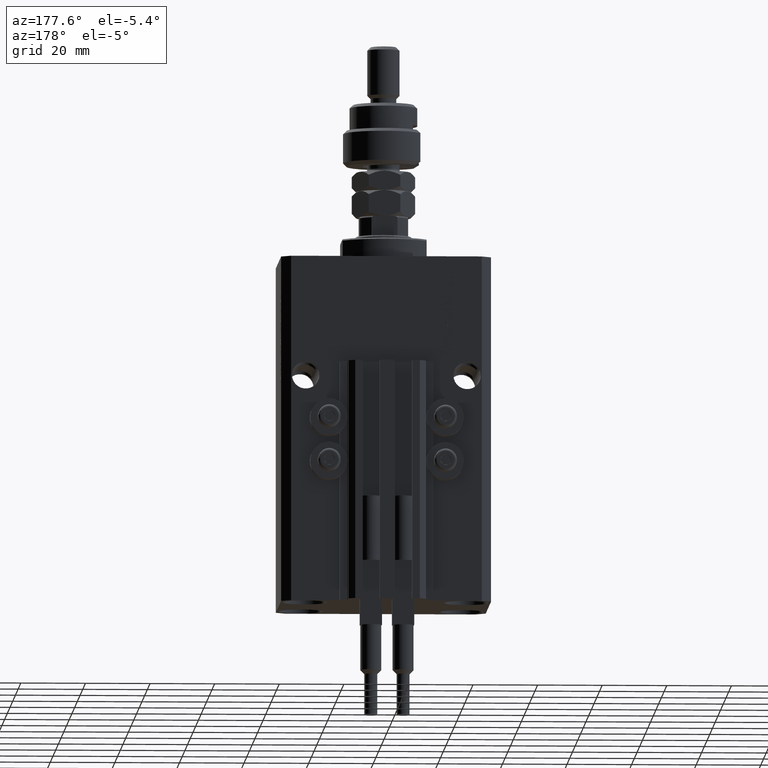
[diagram: clean part render]
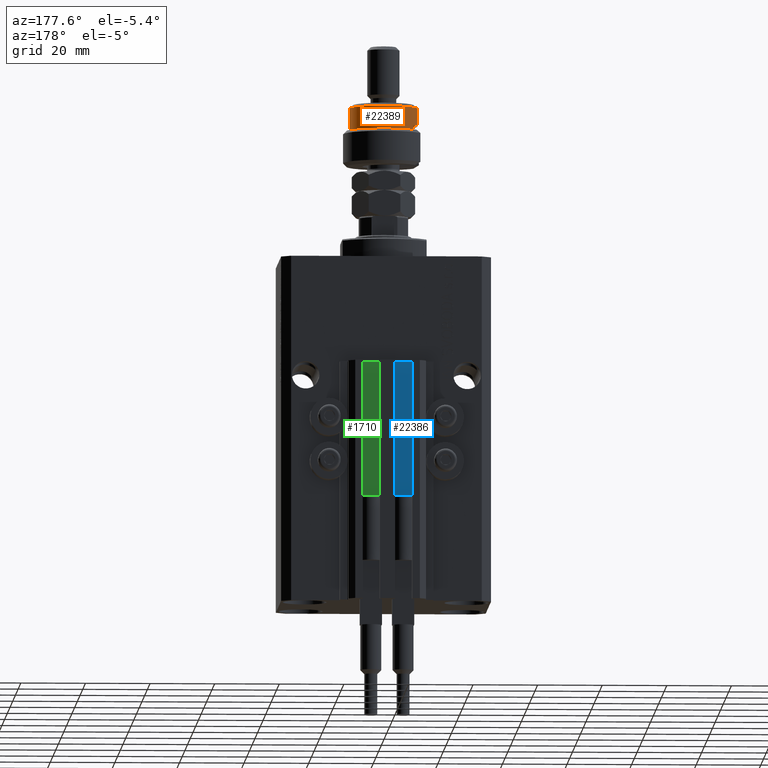
[diagram: same view with three faces highlighted in distinct colors, each labeled with its STEP entity id]
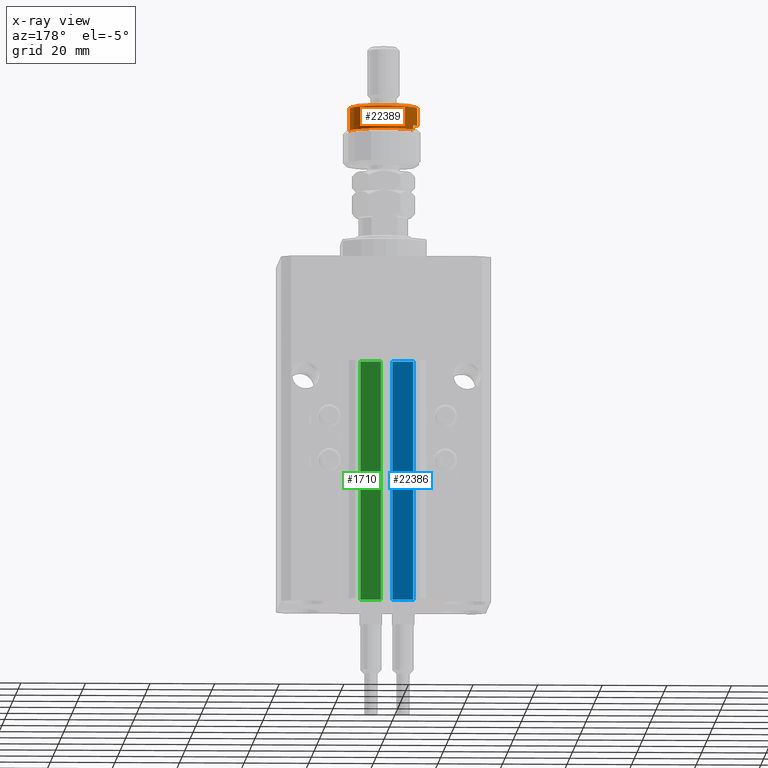
[diagram: x-ray of the same camera — body ghosted, the three highlighted faces saturated]
A machine part, auxiliary view with three faces highlighted in distinct colors.
The next image is the same camera in x-ray (body ghosted, the three faces saturated) — at least one of them is partly hidden behind the body in this view.
Their STEP definitions:

[orange] entity #22389 — the highlighted cylindrical surface (edge-blend (fillet) strip) has radius 10.5 mm, axis along (-0, -0, -1).
#85 = CARTESIAN_POINT ( 'NONE',  ( 0.000000000000000000, 0.000000000000000000, 19.00000000000000000 ) ) ;
#1419 = CARTESIAN_POINT ( 'NONE',  ( -8.944271909999159220, 5.500000000000000000, 19.00000000000000000 ) ) ;
#3149 = EDGE_CURVE ( 'NONE', #17079, #43032, #30080, .T. ) ;
#3860 = DIRECTION ( 'NONE',  ( 0.000000000000000000, 0.000000000000000000, -1.000000000000000000 ) ) ;
#5013 = LINE ( 'NONE', #1419, #15213 ) ;
#5597 = AXIS2_PLACEMENT_3D ( 'NONE', #35179, #3860, #7203 ) ;
#6905 = AXIS2_PLACEMENT_3D ( 'NONE', #85, #15456, #27801 ) ;
#7203 = DIRECTION ( 'NONE',  ( -1.000000000000000000, 0.000000000000000000, 0.000000000000000000 ) ) ;
#7887 = CARTESIAN_POINT ( 'NONE',  ( -8.944271909999159220, 5.500000000000000000, 12.50000000000000000 ) ) ;
#8529 = CARTESIAN_POINT ( 'NONE',  ( -10.50000000000000000, 0.000000000000000000, 17.99999999999999645 ) ) ;
#11384 = CYLINDRICAL_SURFACE ( 'NONE', #6905, 10.50000000000000000 ) ;
#12703 = CARTESIAN_POINT ( 'NONE',  ( 10.50000000000000000, 1.285879139104720831E-15, 11.00000000000000000 ) ) ;
#12718 = DIRECTION ( 'NONE',  ( 0.000000000000000000, 0.000000000000000000, 1.000000000000000000 ) ) ;
#14217 = EDGE_CURVE ( 'NONE', #20940, #44295, #47852, .T. ) ;
#14644 = DIRECTION ( 'NONE',  ( 0.000000000000000000, 0.000000000000000000, 1.000000000000000000 ) ) ;
#15213 = VECTOR ( 'NONE', #12718, 1000.000000000000000 ) ;
#15220 = VECTOR ( 'NONE', #31376, 1000.000000000000000 ) ;
#15456 = DIRECTION ( 'NONE',  ( -0.000000000000000000, -0.000000000000000000, -1.000000000000000000 ) ) ;
#15841 = ORIENTED_EDGE ( 'NONE', *, *, #44699, .T. ) ;
#15871 = CARTESIAN_POINT ( 'NONE',  ( 10.50000000000000000, 1.285879139104720831E-15, 17.99999999999999645 ) ) ;
#17079 = VERTEX_POINT ( 'NONE', #34261 ) ;
#18491 = CIRCLE ( 'NONE', #43972, 10.50000000000000000 ) ;
#18577 = CARTESIAN_POINT ( 'NONE',  ( 0.000000000000000000, 0.000000000000000000, 17.99999999999999645 ) ) ;
#19569 = CARTESIAN_POINT ( 'NONE',  ( -10.50000000000000000, 0.000000000000000000, 19.00000000000000000 ) ) ;
#20940 = VERTEX_POINT ( 'NONE', #15871 ) ;
#21421 = CARTESIAN_POINT ( 'NONE',  ( -8.944271909999159220, 5.500000000000000000, 11.00000000000000000 ) ) ;
#21840 = CIRCLE ( 'NONE', #48965, 10.50000000000000000 ) ;
#22389 = ADVANCED_FACE ( 'NONE', ( #23439 ), #11384, .T. ) ;
#23206 = EDGE_CURVE ( 'NONE', #25087, #43032, #5013, .T. ) ;
#23262 = EDGE_CURVE ( 'NONE', #43601, #20940, #18491, .T. ) ;
#23439 = FACE_OUTER_BOUND ( 'NONE', #44742, .T. ) ;
#24767 = VECTOR ( 'NONE', #31132, 1000.000000000000000 ) ;
#25087 = VERTEX_POINT ( 'NONE', #21421 ) ;
#27801 = DIRECTION ( 'NONE',  ( -1.000000000000000000, 0.000000000000000000, 0.000000000000000000 ) ) ;
#28048 = CARTESIAN_POINT ( 'NONE',  ( 10.50000000000000000, 1.285879139104720831E-15, 19.00000000000000000 ) ) ;
#30080 = CIRCLE ( 'NONE', #5597, 10.50000000000000000 ) ;
#30321 = DIRECTION ( 'NONE',  ( 1.000000000000000000, 0.000000000000000000, 0.000000000000000000 ) ) ;
#31128 = ORIENTED_EDGE ( 'NONE', *, *, #43758, .F. ) ;
#31132 = DIRECTION ( 'NONE',  ( -0.000000000000000000, -0.000000000000000000, -1.000000000000000000 ) ) ;
#31376 = DIRECTION ( 'NONE',  ( -0.000000000000000000, -0.000000000000000000, -1.000000000000000000 ) ) ;
#33341 = ORIENTED_EDGE ( 'NONE', *, *, #23262, .T. ) ;
#34077 = ORIENTED_EDGE ( 'NONE', *, *, #23206, .T. ) ;
#34261 = CARTESIAN_POINT ( 'NONE',  ( -10.50000000000000000, 0.000000000000000000, 12.50000000000000000 ) ) ;
#34500 = DIRECTION ( 'NONE',  ( 0.000000000000000000, 0.000000000000000000, -1.000000000000000000 ) ) ;
#35179 = CARTESIAN_POINT ( 'NONE',  ( 0.000000000000000000, 0.000000000000000000, 12.50000000000000000 ) ) ;
#35426 = ORIENTED_EDGE ( 'NONE', *, *, #3149, .F. ) ;
#38203 = ORIENTED_EDGE ( 'NONE', *, *, #14217, .T. ) ;
#38368 = DIRECTION ( 'NONE',  ( 1.000000000000000000, 0.000000000000000000, 0.000000000000000000 ) ) ;
#39362 = LINE ( 'NONE', #19569, #15220 ) ;
#41400 = CARTESIAN_POINT ( 'NONE',  ( 0.000000000000000000, 0.000000000000000000, 11.00000000000000000 ) ) ;
#43032 = VERTEX_POINT ( 'NONE', #7887 ) ;
#43601 = VERTEX_POINT ( 'NONE', #8529 ) ;
#43758 = EDGE_CURVE ( 'NONE', #43601, #17079, #39362, .T. ) ;
#43972 = AXIS2_PLACEMENT_3D ( 'NONE', #18577, #34500, #38368 ) ;
#44295 = VERTEX_POINT ( 'NONE', #12703 ) ;
#44699 = EDGE_CURVE ( 'NONE', #44295, #25087, #21840, .T. ) ;
#44742 = EDGE_LOOP ( 'NONE', ( #33341, #38203, #15841, #34077, #35426, #31128 ) ) ;
#47852 = LINE ( 'NONE', #28048, #24767 ) ;
#48965 = AXIS2_PLACEMENT_3D ( 'NONE', #41400, #14644, #30321 ) ;

[blue] entity #22386 — the highlighted planar face has unit normal (0, 1, 0).
#349 = AXIS2_PLACEMENT_3D ( 'NONE', #46336, #39637, #34751 ) ;
#2168 = ORIENTED_EDGE ( 'NONE', *, *, #10846, .T. ) ;
#3614 = LINE ( 'NONE', #31070, #29246 ) ;
#3651 = ORIENTED_EDGE ( 'NONE', *, *, #37706, .F. ) ;
#4248 = CARTESIAN_POINT ( 'NONE',  ( -1.800000000000000933, 24.49999999999949551, -107.0000000000000000 ) ) ;
#4482 = EDGE_LOOP ( 'NONE', ( #27648, #3651, #44558, #2168 ) ) ;
#8034 = FACE_OUTER_BOUND ( 'NONE', #4482, .T. ) ;
#10846 = EDGE_CURVE ( 'NONE', #49672, #39173, #29325, .T. ) ;
#11256 = CARTESIAN_POINT ( 'NONE',  ( -1.800000000000000933, 24.49999999999949551, -33.00000000000000000 ) ) ;
#13591 = DIRECTION ( 'NONE',  ( -1.000000000000000000, 0.000000000000000000, 0.000000000000000000 ) ) ;
#15765 = EDGE_CURVE ( 'NONE', #29096, #39173, #44704, .T. ) ;
#20184 = LINE ( 'NONE', #31220, #37174 ) ;
#22386 = ADVANCED_FACE ( 'NONE', ( #8034 ), #27299, .T. ) ;
#24465 = DIRECTION ( 'NONE',  ( 0.000000000000000000, 0.000000000000000000, 1.000000000000000000 ) ) ;
#24944 = VERTEX_POINT ( 'NONE', #4248 ) ;
#27299 = PLANE ( 'NONE',  #349 ) ;
#27648 = ORIENTED_EDGE ( 'NONE', *, *, #15765, .F. ) ;
#29096 = VERTEX_POINT ( 'NONE', #11256 ) ;
#29246 = VECTOR ( 'NONE', #31320, 1000.000000000000000 ) ;
#29325 = LINE ( 'NONE', #44013, #32017 ) ;
#31070 = CARTESIAN_POINT ( 'NONE',  ( -1.800000000000000933, 24.49999999999949551, -107.0000000000000000 ) ) ;
#31220 = CARTESIAN_POINT ( 'NONE',  ( -1.800000000000000933, 24.49999999999949551, -107.0000000000000000 ) ) ;
#31320 = DIRECTION ( 'NONE',  ( -1.000000000000000000, 0.000000000000000000, 0.000000000000000000 ) ) ;
#32017 = VECTOR ( 'NONE', #24465, 1000.000000000000000 ) ;
#34751 = DIRECTION ( 'NONE',  ( 0.000000000000000000, 0.000000000000000000, 1.000000000000000000 ) ) ;
#37174 = VECTOR ( 'NONE', #43332, 1000.000000000000000 ) ;
#37706 = EDGE_CURVE ( 'NONE', #24944, #29096, #20184, .T. ) ;
#39173 = VERTEX_POINT ( 'NONE', #40939 ) ;
#39637 = DIRECTION ( 'NONE',  ( 0.000000000000000000, 1.000000000000000000, -0.000000000000000000 ) ) ;
#40939 = CARTESIAN_POINT ( 'NONE',  ( -8.199999999999999289, 24.49999999999949551, -33.00000000000000000 ) ) ;
#43332 = DIRECTION ( 'NONE',  ( 0.000000000000000000, 0.000000000000000000, 1.000000000000000000 ) ) ;
#44013 = CARTESIAN_POINT ( 'NONE',  ( -8.199999999999999289, 24.49999999999949551, -107.0000000000000000 ) ) ;
#44428 = VECTOR ( 'NONE', #13591, 1000.000000000000000 ) ;
#44558 = ORIENTED_EDGE ( 'NONE', *, *, #44828, .T. ) ;
#44704 = LINE ( 'NONE', #44950, #44428 ) ;
#44828 = EDGE_CURVE ( 'NONE', #24944, #49672, #3614, .T. ) ;
#44950 = CARTESIAN_POINT ( 'NONE',  ( -1.800000000000000933, 24.49999999999949551, -33.00000000000000000 ) ) ;
#45500 = CARTESIAN_POINT ( 'NONE',  ( -8.199999999999999289, 24.49999999999949551, -107.0000000000000000 ) ) ;
#46336 = CARTESIAN_POINT ( 'NONE',  ( -1.800000000000000933, 24.49999999999949551, -107.0000000000000000 ) ) ;
#49672 = VERTEX_POINT ( 'NONE', #45500 ) ;

[green] entity #1710 — the highlighted planar face has unit normal (0, 1, 0).
#372 = VECTOR ( 'NONE', #13112, 1000.000000000000000 ) ;
#1477 = EDGE_LOOP ( 'NONE', ( #16150, #39867, #34278, #45527 ) ) ;
#1710 = ADVANCED_FACE ( 'NONE', ( #17780 ), #14184, .T. ) ;
#2587 = VECTOR ( 'NONE', #48243, 1000.000000000000000 ) ;
#4180 = EDGE_CURVE ( 'NONE', #45622, #46679, #8483, .T. ) ;
#4651 = LINE ( 'NONE', #32118, #372 ) ;
#8049 = AXIS2_PLACEMENT_3D ( 'NONE', #29862, #14940, #10358 ) ;
#8483 = LINE ( 'NONE', #36459, #15349 ) ;
#8593 = CARTESIAN_POINT ( 'NONE',  ( 8.200000000000001066, 24.49999999999949196, -33.00000000000000000 ) ) ;
#9116 = VECTOR ( 'NONE', #22068, 1000.000000000000000 ) ;
#10016 = CARTESIAN_POINT ( 'NONE',  ( 8.200000000000001066, 24.49999999999949196, -107.0000000000000000 ) ) ;
#10358 = DIRECTION ( 'NONE',  ( 0.000000000000000000, 0.000000000000000000, 1.000000000000000000 ) ) ;
#12144 = EDGE_CURVE ( 'NONE', #16406, #47093, #18465, .T. ) ;
#13034 = CARTESIAN_POINT ( 'NONE',  ( 1.800000000000000933, 24.49999999999949196, -107.0000000000000000 ) ) ;
#13112 = DIRECTION ( 'NONE',  ( 0.000000000000000000, 0.000000000000000000, 1.000000000000000000 ) ) ;
#13281 = LINE ( 'NONE', #13034, #2587 ) ;
#14184 = PLANE ( 'NONE',  #8049 ) ;
#14940 = DIRECTION ( 'NONE',  ( 0.000000000000000000, 1.000000000000000000, -0.000000000000000000 ) ) ;
#15349 = VECTOR ( 'NONE', #24645, 1000.000000000000000 ) ;
#15968 = EDGE_CURVE ( 'NONE', #47093, #46679, #13281, .T. ) ;
#16150 = ORIENTED_EDGE ( 'NONE', *, *, #4180, .F. ) ;
#16406 = VERTEX_POINT ( 'NONE', #38747 ) ;
#17780 = FACE_OUTER_BOUND ( 'NONE', #1477, .T. ) ;
#18465 = LINE ( 'NONE', #10016, #9116 ) ;
#22068 = DIRECTION ( 'NONE',  ( -1.000000000000000000, 0.000000000000000000, 0.000000000000000000 ) ) ;
#24645 = DIRECTION ( 'NONE',  ( -1.000000000000000000, 0.000000000000000000, 0.000000000000000000 ) ) ;
#29862 = CARTESIAN_POINT ( 'NONE',  ( 8.200000000000001066, 24.49999999999949196, -107.0000000000000000 ) ) ;
#32118 = CARTESIAN_POINT ( 'NONE',  ( 8.200000000000001066, 24.49999999999949196, -107.0000000000000000 ) ) ;
#34278 = ORIENTED_EDGE ( 'NONE', *, *, #12144, .T. ) ;
#36459 = CARTESIAN_POINT ( 'NONE',  ( 8.200000000000001066, 24.49999999999949196, -33.00000000000000000 ) ) ;
#38747 = CARTESIAN_POINT ( 'NONE',  ( 8.200000000000001066, 24.49999999999949196, -107.0000000000000000 ) ) ;
#39634 = CARTESIAN_POINT ( 'NONE',  ( 1.800000000000000933, 24.49999999999949196, -33.00000000000000000 ) ) ;
#39867 = ORIENTED_EDGE ( 'NONE', *, *, #40333, .F. ) ;
#40333 = EDGE_CURVE ( 'NONE', #16406, #45622, #4651, .T. ) ;
#45451 = CARTESIAN_POINT ( 'NONE',  ( 1.800000000000000933, 24.49999999999949196, -107.0000000000000000 ) ) ;
#45527 = ORIENTED_EDGE ( 'NONE', *, *, #15968, .T. ) ;
#45622 = VERTEX_POINT ( 'NONE', #8593 ) ;
#46679 = VERTEX_POINT ( 'NONE', #39634 ) ;
#47093 = VERTEX_POINT ( 'NONE', #45451 ) ;
#48243 = DIRECTION ( 'NONE',  ( 0.000000000000000000, 0.000000000000000000, 1.000000000000000000 ) ) ;